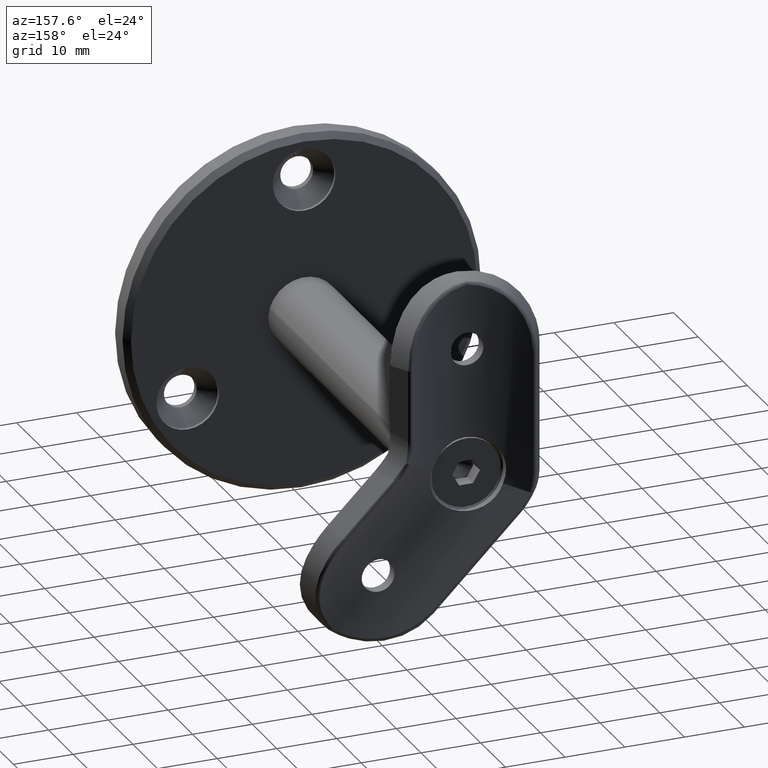
[diagram: clean part render]
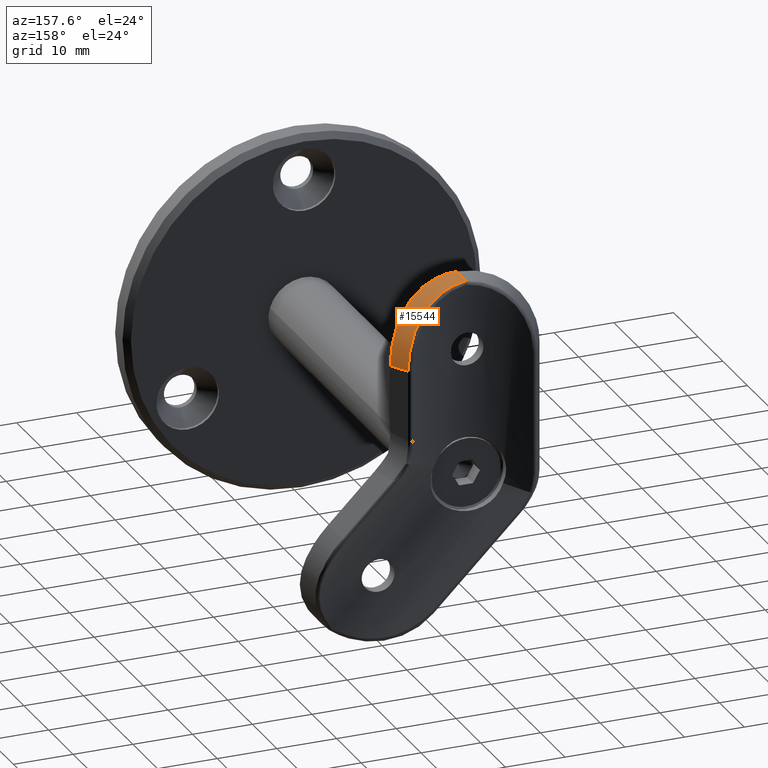
[diagram: same view with one face highlighted and labeled with its STEP entity id]
A machine part, auxiliary view. The second image highlights one B-rep face of the part: STEP entity #15544.
In plain terms, the highlighted cylindrical surface (partial cylindrical patch) has radius 12.5 mm, axis along (-0.496, 0.8683, 0).
Its self-contained STEP definition (entity closure, byte-faithful):
#87 =( BOUNDED_CURVE ( )  B_SPLINE_CURVE ( 3, ( #17680, #2550, #8602, #8727 ),
 .UNSPECIFIED., .F., .T. ) 
 B_SPLINE_CURVE_WITH_KNOTS ( ( 4, 4 ),
 ( 1.570796326794896600, 1.711533291713854400 ),
 .UNSPECIFIED. ) 
 CURVE ( )  GEOMETRIC_REPRESENTATION_ITEM ( )  RATIONAL_B_SPLINE_CURVE ( ( 1.000000000000000000, 0.9983501065453692600, 0.9983501065453692600, 1.000000000000000000 ) ) 
 REPRESENTATION_ITEM ( '' )  );
#595 = CARTESIAN_POINT ( 'NONE',  ( 1.886235660244589300, 3.637411586201514600, -0.4780366233980181700 ) ) ;
#885 = CARTESIAN_POINT ( 'NONE',  ( 12.42593213786106600, 3.275942108313401000, -10.81716259696245300 ) ) ;
#943 = CARTESIAN_POINT ( 'NONE',  ( 12.50000000000000200, 3.318729470161014400, -11.65131462300098000 ) ) ;
#958 = DIRECTION ( 'NONE',  ( 0.4960317460317461000, -0.8683043861047214900, -0.0000000000000000000 ) ) ;
#1007 = CARTESIAN_POINT ( 'NONE',  ( 12.11489000487418000, 3.102822514503106100, -9.180283859318134200 ) ) ;
#1047 = EDGE_CURVE ( 'NONE', #9787, #3648, #6548, .T. ) ;
#1135 = CARTESIAN_POINT ( 'NONE',  ( 11.89376168094891100, 2.983018977985725700, -8.374334854254618300 ) ) ;
#1253 = CARTESIAN_POINT ( 'NONE',  ( 7.817128580942958000, 1.232221269887715300, -2.390605118497026300 ) ) ;
#1322 = CARTESIAN_POINT ( 'NONE',  ( 10.07048743595559900, 2.098031901673115900, -4.710125348738568400 ) ) ;
#1385 = EDGE_CURVE ( 'NONE', #3648, #14641, #7338, .T. ) ;
#1982 = CARTESIAN_POINT ( 'NONE',  ( 10.69914178354446600, 6.328894064283700200, -10.97176834435099300 ) ) ;
#2238 = CARTESIAN_POINT ( 'NONE',  ( 3.682392879710391800, 3.876355631954411200, -1.073348802010411200 ) ) ;
#2550 = CARTESIAN_POINT ( 'NONE',  ( 3.782024738060295200E-017, 1.183167199949963300, -1.698786920315227900E-015 ) ) ;
#3115 = AXIS2_PLACEMENT_3D ( 'NONE', #6253, #18366, #15294 ) ;
#3353 = CARTESIAN_POINT ( 'NONE',  ( 8.078025572575306500, 5.117717418953643200, -4.429108509089287400 ) ) ;
#3555 = CARTESIAN_POINT ( 'NONE',  ( 10.25582841702977000, 6.096454567321024400, -8.746394663644363000 ) ) ;
#3648 = VERTEX_POINT ( 'NONE', #7754 ) ;
#4087 = ORIENTED_EDGE ( 'NONE', *, *, #1385, .F. ) ;
#4152 = CARTESIAN_POINT ( 'NONE',  ( 3.336452648389693900, 0.2184905582897320700, -0.3602012633736843000 ) ) ;
#4157 = VECTOR ( 'NONE', #958, 1000.000000000000000 ) ;
#4614 = CYLINDRICAL_SURFACE ( 'NONE', #3115, 12.50000000000000200 ) ;
#4810 = CARTESIAN_POINT ( 'NONE',  ( 8.732437442801881400, 5.384042476987790600, -5.339653182556714800 ) ) ;
#5058 = CARTESIAN_POINT ( 'NONE',  ( 10.14746091402532500, 6.041204631273902100, -8.379964578236530000 ) ) ;
#5122 = CARTESIAN_POINT ( 'NONE',  ( 2.982566750256892400, 3.761708217500612200, -0.7996028970364447200 ) ) ;
#5260 = CARTESIAN_POINT ( 'NONE',  ( 5.018732032302907000, 4.153709446534377600, -1.748610095838169000 ) ) ;
#5531 = EDGE_LOOP ( 'NONE', ( #11825, #14290, #7389, #4087 ) ) ;
#5593 = CARTESIAN_POINT ( 'NONE',  ( 4.541713459850109700, 0.4095295967373566700, -0.7010748751101031400 ) ) ;
#6248 = CARTESIAN_POINT ( 'NONE',  ( 9.474441442385686000, 5.711516723044967500, -6.625761257092558600 ) ) ;
#6253 = CARTESIAN_POINT ( 'NONE',  ( -10.85380482630902300, 18.99960317460317000, -12.50000000000000000 ) ) ;
#6523 = CARTESIAN_POINT ( 'NONE',  ( 9.778195945374086800, 5.857501213715773100, -7.306794715999462400 ) ) ;
#6548 = LINE ( 'NONE', #15862, #4157 ) ;
#7051 = CARTESIAN_POINT ( 'NONE',  ( 9.295514644333644900, 1.775107711457989400, -3.765742000863847600 ) ) ;
#7176 = CARTESIAN_POINT ( 'NONE',  ( 2.353543754483576900E-016, 0.0000000000000000000, 0.0000000000000000000 ) ) ;
#7338 = B_SPLINE_CURVE_WITH_KNOTS ( 'NONE', 3,
 ( #8254, #943, #885, #17452, #1007, #1135, #17518, #11568, #11826, #12992, #1322, #10069, #7051, #10198, #1253, #19103, #16165, #5593, #13119, #4152, #8820, #16225, #19168, #7176 ),
 .UNSPECIFIED., .F., .F.,
 ( 4, 2, 2, 2, 2, 2, 2, 2, 2, 2, 2, 4 ),
 ( 1.748223473168675600E-017, 0.002510071529770218600, 0.003765107294655316800, 0.005020143059540415500, 0.007530214589310611100, 0.008785250354195712300, 0.01004028611908081400, 0.01255035764885101300, 0.01506042917862121200, 0.01631546494350631300, 0.01757050070839141400, 0.02008057223816161300 ),
 .UNSPECIFIED. ) ;
#7389 = ORIENTED_EDGE ( 'NONE', *, *, #15864, .F. ) ;
#7754 = CARTESIAN_POINT ( 'NONE',  ( 12.50000000000000000, 3.318729470161013500, -12.50000000000001800 ) ) ;
#7882 = CARTESIAN_POINT ( 'NONE',  ( 5.660228788552983800, 4.318393923613340000, -2.155396337753180200 ) ) ;
#8254 = CARTESIAN_POINT ( 'NONE',  ( 12.50000000000000000, 3.318729470161013500, -12.50000000000001800 ) ) ;
#8602 = CARTESIAN_POINT ( 'NONE',  ( 7.554689569329730400E-017, 2.363406250171531800, -0.04126437791007404900 ) ) ;
#8607 = CARTESIAN_POINT ( 'NONE',  ( 1.512534312677428900, 3.603984713387406600, -0.3857995503082750100 ) ) ;
#8727 = CARTESIAN_POINT ( 'NONE',  ( 1.129932100877339800E-016, 3.534875344613122500, -0.1235888882491487100 ) ) ;
#8820 = CARTESIAN_POINT ( 'NONE',  ( 2.924802006616160200, 0.1668656466313037100, -0.2720974402485542600 ) ) ;
#9787 = VERTEX_POINT ( 'NONE', #18166 ) ;
#10069 = CARTESIAN_POINT ( 'NONE',  ( 9.563864885048385400, 1.883736669989527300, -4.069526909974207700 ) ) ;
#10198 = CARTESIAN_POINT ( 'NONE',  ( 8.444955973289221900, 1.449391512206032100, -2.902564333401197200 ) ) ;
#10847 = CARTESIAN_POINT ( 'NONE',  ( 8.306990274870464900, 5.208489760463035800, -4.726765455993029400 ) ) ;
#10973 = CARTESIAN_POINT ( 'NONE',  ( 10.51596856347534500, 6.231654387538008600, -9.851803005224013500 ) ) ;
#11104 = CARTESIAN_POINT ( 'NONE',  ( 0.3821928855089618500, 3.540474987469392600, -0.1709981587857590000 ) ) ;
#11568 = CARTESIAN_POINT ( 'NONE',  ( 11.32367428727380300, 2.685033447932416300, -6.815258891685196800 ) ) ;
#11825 = ORIENTED_EDGE ( 'NONE', *, *, #1047, .F. ) ;
#11826 = CARTESIAN_POINT ( 'NONE',  ( 10.96168210474422900, 2.503936689799164400, -6.083208287748629300 ) ) ;
#12347 = CARTESIAN_POINT ( 'NONE',  ( 10.76103118381681300, 6.362797238949669400, -12.50000000000000400 ) ) ;
#12542 = CARTESIAN_POINT ( 'NONE',  ( 10.43973043402894300, 6.191504704657164700, -9.481371964430872300 ) ) ;
#12726 = CARTESIAN_POINT ( 'NONE',  ( 0.7612053465456503100, 3.555611259634092300, -0.2325104925442121300 ) ) ;
#12992 = CARTESIAN_POINT ( 'NONE',  ( 10.30840557189280900, 2.203604289978435400, -5.047045322774975400 ) ) ;
#13119 = CARTESIAN_POINT ( 'NONE',  ( 4.146472128489391700, 0.3401025917469536800, -0.5751845204073293700 ) ) ;
#13771 = CARTESIAN_POINT ( 'NONE',  ( 10.76103118381681500, 6.362797238949669400, -11.72989859630233900 ) ) ;
#13836 = CARTESIAN_POINT ( 'NONE',  ( 7.356878499882809000, 4.846172735344610200, -3.582081472738403200 ) ) ;
#14290 = ORIENTED_EDGE ( 'NONE', *, *, #18944, .T. ) ;
#14456 = FACE_OUTER_BOUND ( 'NONE', #5531, .T. ) ;
#14641 = VERTEX_POINT ( 'NONE', #16964 ) ;
#15294 = DIRECTION ( 'NONE',  ( -0.8683043861047214900, -0.4960317460317461600, 0.0000000000000000000 ) ) ;
#15358 = CARTESIAN_POINT ( 'NONE',  ( 6.826138860911686200, 4.664190324600243200, -3.071314024162519600 ) ) ;
#15544 = ADVANCED_FACE ( 'NONE', ( #14456 ), #4614, .T. ) ;
#15862 = CARTESIAN_POINT ( 'NONE',  ( 12.50000000000000000, 3.318729470161013500, -12.50000000000000400 ) ) ;
#15864 = EDGE_CURVE ( 'NONE', #14641, #16119, #87, .T. ) ;
#16119 = VERTEX_POINT ( 'NONE', #16774 ) ;
#16165 = CARTESIAN_POINT ( 'NONE',  ( 5.698461715680557500, 0.6401573714198712800, -1.134961145442713800 ) ) ;
#16225 = CARTESIAN_POINT ( 'NONE',  ( 1.685795824113163600, 0.04275011520024039200, -0.06461064261555886400 ) ) ;
#16732 = CARTESIAN_POINT ( 'NONE',  ( 8.929213846726124600, 5.468873309084139900, -5.654815444850855000 ) ) ;
#16774 = CARTESIAN_POINT ( 'NONE',  ( 1.129932100877339800E-016, 3.534875344613122500, -0.1235888882491487100 ) ) ;
#16964 = CARTESIAN_POINT ( 'NONE',  ( 2.353543754483576900E-016, 0.0000000000000000000, 0.0000000000000000000 ) ) ;
#17370 = B_SPLINE_CURVE_WITH_KNOTS ( 'NONE', 3,
 ( #12347, #13771, #1982, #10973, #12542, #3555, #5058, #6523, #6248, #16732, #4810, #10847, #3353, #13836, #15358, #7882, #5260, #2238, #5122, #595, #8607, #12726, #11104, #18688 ),
 .UNSPECIFIED., .F., .F.,
 ( 4, 2, 2, 2, 2, 2, 2, 2, 2, 2, 2, 4 ),
 ( 0.0000000000000000000, 0.002277749885580768800, 0.003416624828371153400, 0.004555499771161537600, 0.006833249656742316400, 0.007972124599532705300, 0.009110999542323094300, 0.01138874942790387600, 0.01366649931348465900, 0.01594424919906544200, 0.01708312414185583100, 0.01822199908464622300 ),
 .UNSPECIFIED. ) ;
#17452 = CARTESIAN_POINT ( 'NONE',  ( 12.20634323637394100, 3.153408182237853900, -9.586866491389527000 ) ) ;
#17518 = CARTESIAN_POINT ( 'NONE',  ( 11.76378122751854100, 2.913663809806475300, -7.975013328668149300 ) ) ;
#17680 = CARTESIAN_POINT ( 'NONE',  ( 2.353543754483576900E-016, 0.0000000000000000000, 0.0000000000000000000 ) ) ;
#18166 = CARTESIAN_POINT ( 'NONE',  ( 10.76103118381681300, 6.362797238949669400, -12.50000000000000400 ) ) ;
#18366 = DIRECTION ( 'NONE',  ( -0.4960317460317461000, 0.8683043861047214900, 0.0000000000000000000 ) ) ;
#18688 = CARTESIAN_POINT ( 'NONE',  ( 1.129932100877339800E-016, 3.534875344613122500, -0.1235888882491487100 ) ) ;
#18944 = EDGE_CURVE ( 'NONE', #9787, #16119, #17370, .T. ) ;
#19103 = CARTESIAN_POINT ( 'NONE',  ( 6.431193674020083700, 0.8237479412059299800, -1.498682162706848700 ) ) ;
#19168 = CARTESIAN_POINT ( 'NONE',  ( 0.8482355912717838300, -1.370311079113623900E-016, 1.050320854595332400E-016 ) ) ;